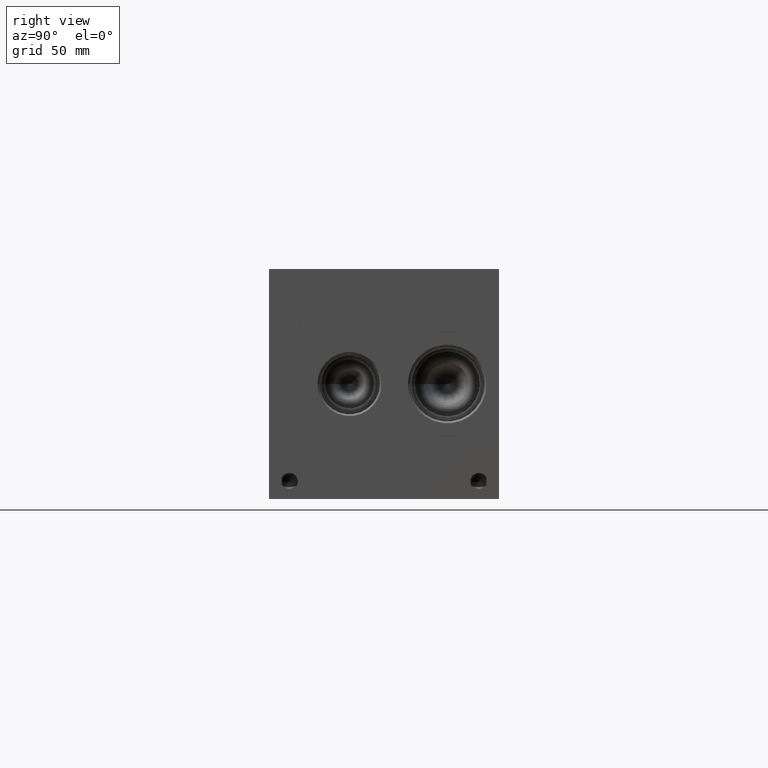
[diagram: clean part render]
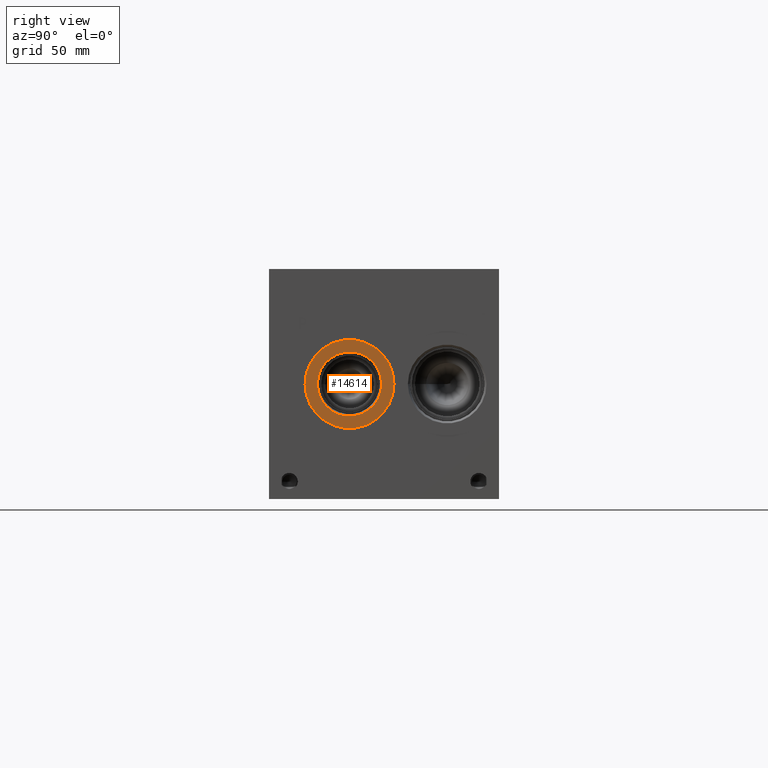
[diagram: same view with one face highlighted and labeled with its STEP entity id]
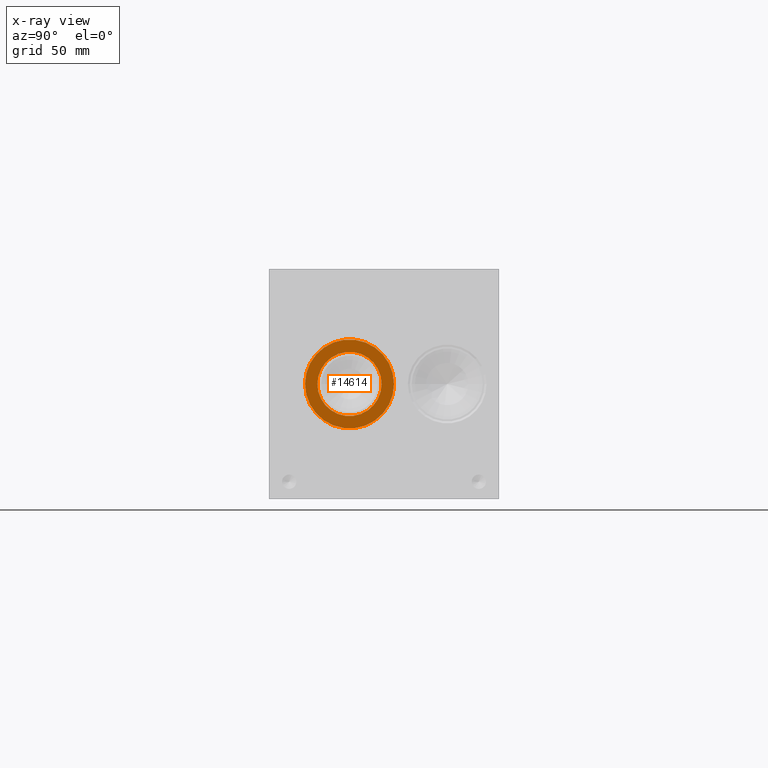
[diagram: x-ray of the same camera — body ghosted, the highlighted face saturated]
A machine part, right view. The second image highlights one B-rep face of the part: STEP entity #14614.
The next image is the same camera in x-ray: the body ghosted, the highlighted face saturated — about 0% of this face is hidden behind the body in this view.
In plain terms, the highlighted planar face has unit normal (1, 0, 0).
Its self-contained STEP definition (entity closure, byte-faithful):
#264=CIRCLE('',#15274,24.5618);
#265=CIRCLE('',#15275,24.5618);
#266=CIRCLE('',#15276,17.7546);
#659=FACE_BOUND('',#2679,.T.);
#1839=FACE_OUTER_BOUND('',#2678,.T.);
#2678=EDGE_LOOP('',(#12076,#12077));
#2679=EDGE_LOOP('',(#12078));
#6596=VERTEX_POINT('',#24641);
#6597=VERTEX_POINT('',#24642);
#6598=VERTEX_POINT('',#24645);
#8518=EDGE_CURVE('',#6596,#6597,#264,.T.);
#8519=EDGE_CURVE('',#6597,#6596,#265,.T.);
#8520=EDGE_CURVE('',#6598,#6598,#266,.T.);
#12076=ORIENTED_EDGE('',*,*,#8518,.T.);
#12077=ORIENTED_EDGE('',*,*,#8519,.T.);
#12078=ORIENTED_EDGE('',*,*,#8520,.F.);
#13495=PLANE('',#15273);
#14614=ADVANCED_FACE('',(#1839,#659),#13495,.T.);
#15273=AXIS2_PLACEMENT_3D('',#24640,#17803,#17804);
#15274=AXIS2_PLACEMENT_3D('',#24643,#17805,#17806);
#15275=AXIS2_PLACEMENT_3D('',#24644,#17807,#17808);
#15276=AXIS2_PLACEMENT_3D('',#24646,#17809,#17810);
#17803=DIRECTION('center_axis',(1.,0.,0.));
#17804=DIRECTION('ref_axis',(0.,1.,0.));
#17805=DIRECTION('center_axis',(1.,0.,0.));
#17806=DIRECTION('ref_axis',(0.,1.,0.));
#17807=DIRECTION('center_axis',(1.,0.,0.));
#17808=DIRECTION('ref_axis',(0.,1.,0.));
#17809=DIRECTION('center_axis',(1.,0.,0.));
#17810=DIRECTION('ref_axis',(0.,1.,0.));
#24640=CARTESIAN_POINT('Origin',(361.1626,44.45,63.5));
#24641=CARTESIAN_POINT('',(361.1626,69.0118,63.5));
#24642=CARTESIAN_POINT('',(361.1626,19.8882,63.5));
#24643=CARTESIAN_POINT('Origin',(361.1626,44.45,63.5));
#24644=CARTESIAN_POINT('Origin',(361.1626,44.45,63.5));
#24645=CARTESIAN_POINT('',(361.1626,26.6954,63.5));
#24646=CARTESIAN_POINT('Origin',(361.1626,44.45,63.5));